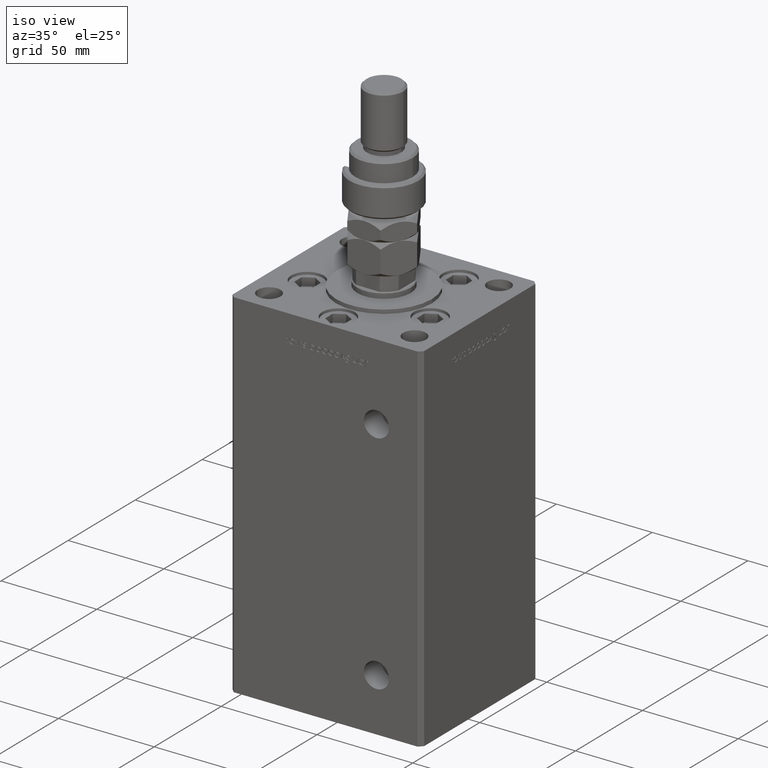
[diagram: clean part render]
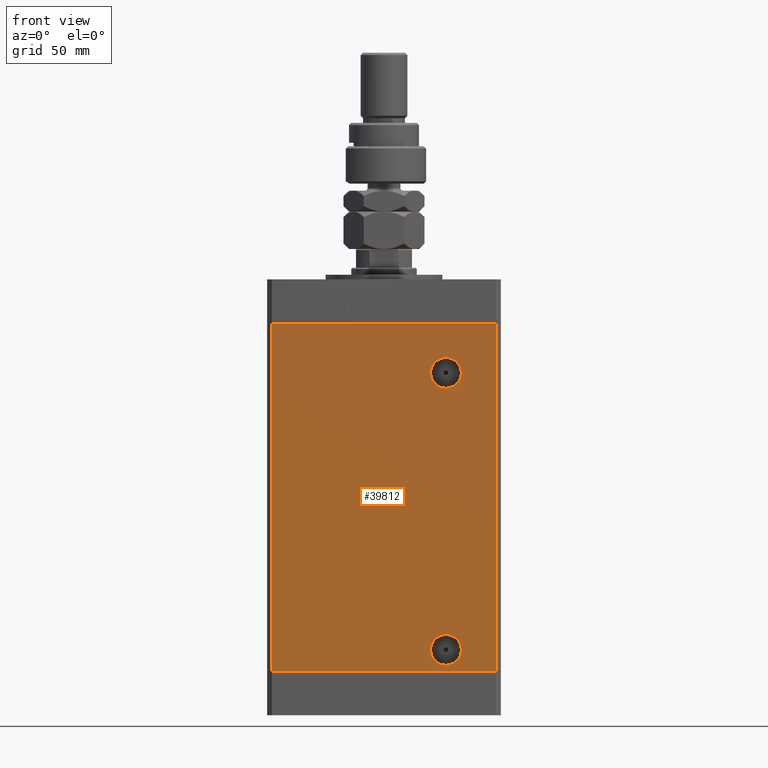
[diagram: tour spotlight — one face highlighted and labeled with its STEP entity id]
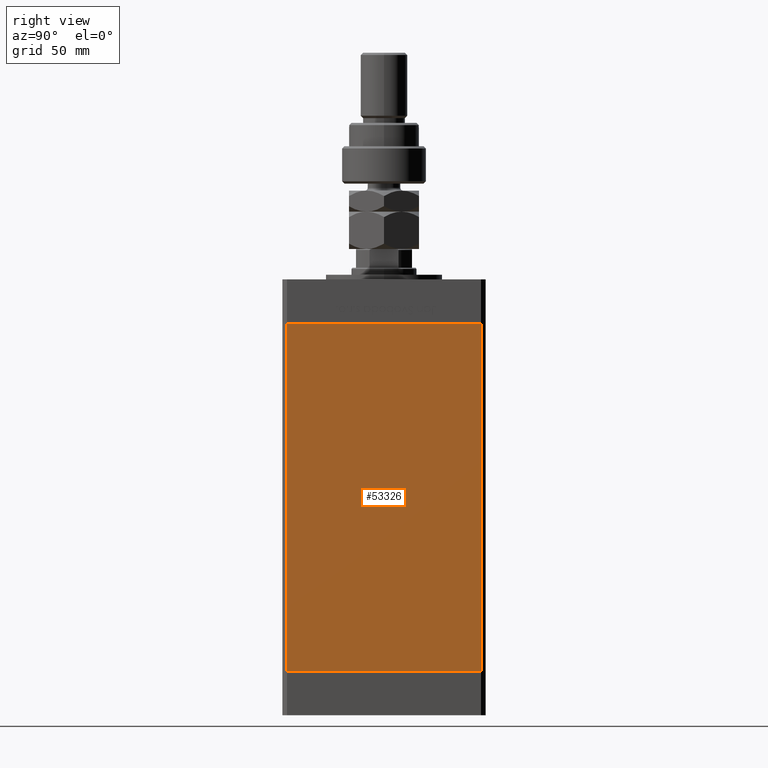
[diagram: tour spotlight — one face highlighted and labeled with its STEP entity id]
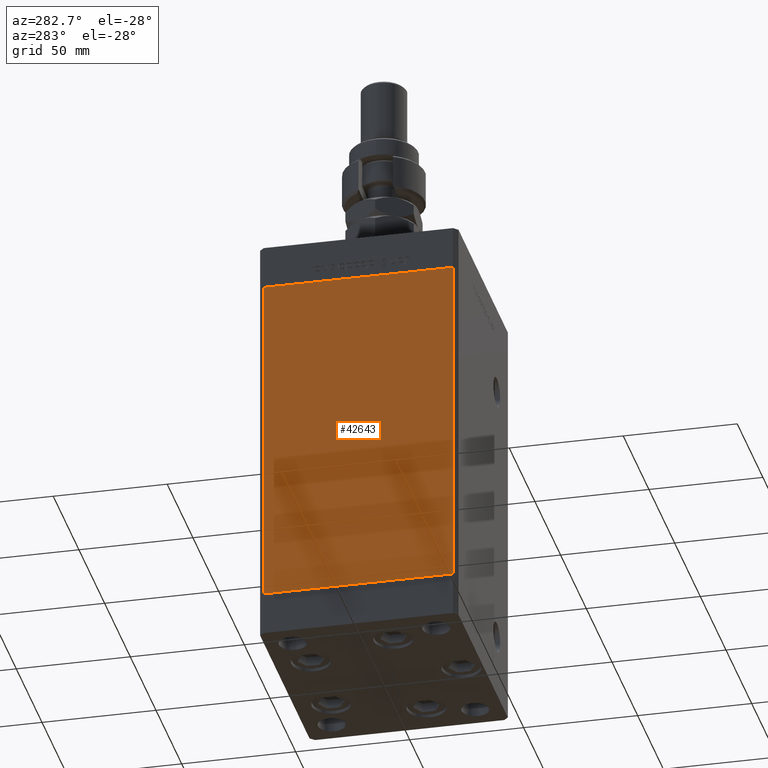
[diagram: tour spotlight — one face highlighted and labeled with its STEP entity id]
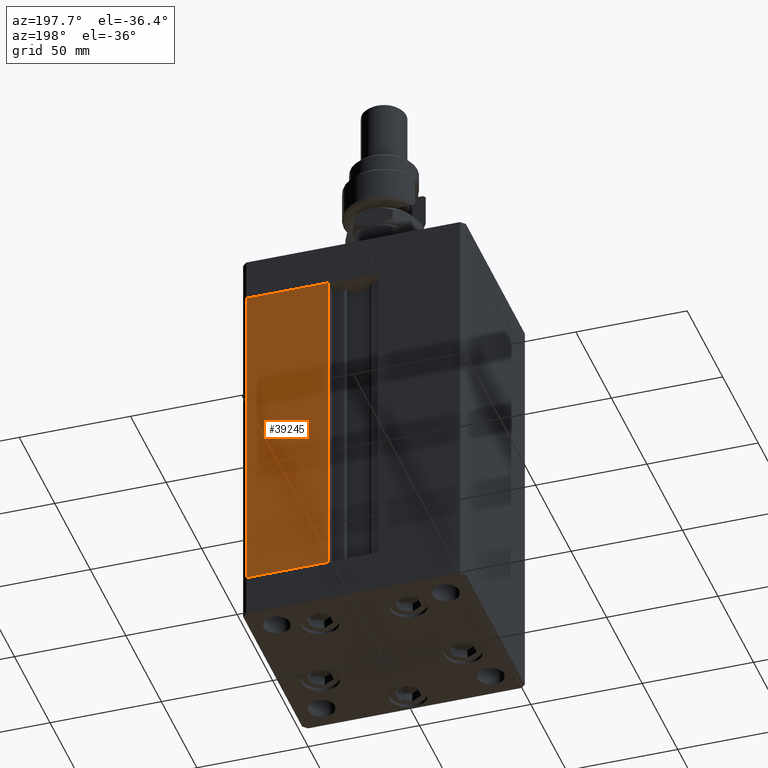
[diagram: tour spotlight — one face highlighted and labeled with its STEP entity id]
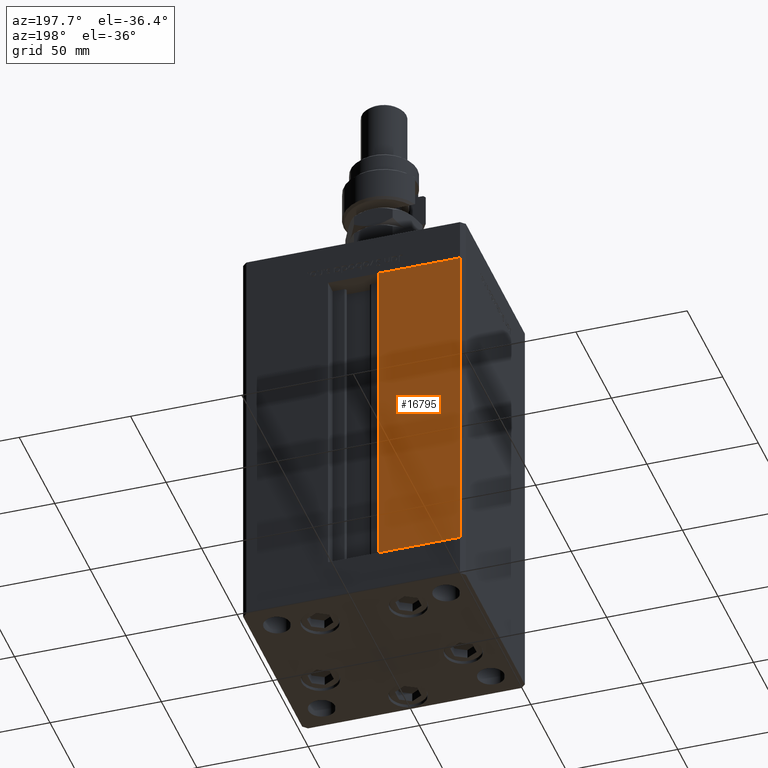
[diagram: tour spotlight — one face highlighted and labeled with its STEP entity id]
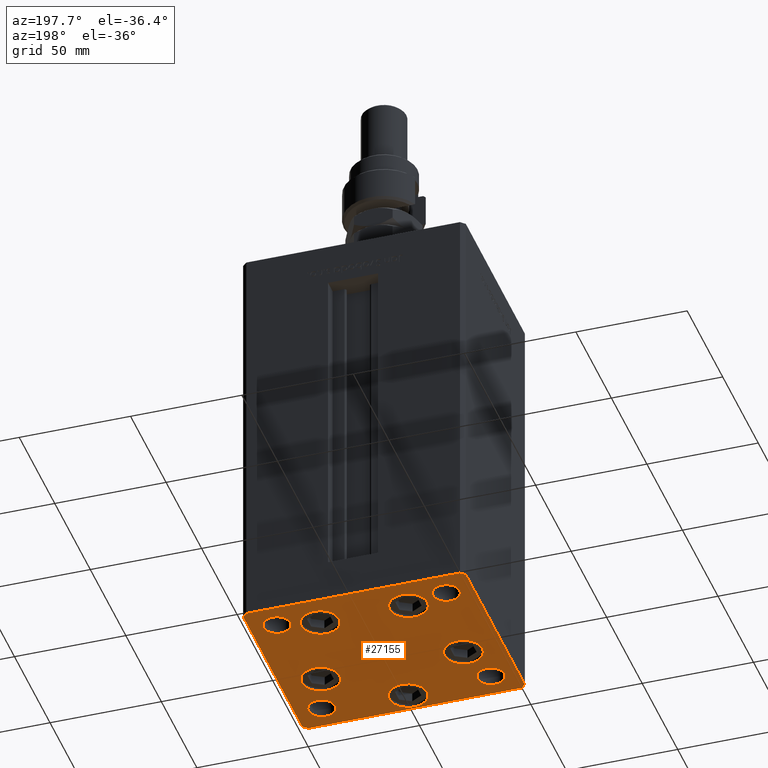
[diagram: tour spotlight — one face highlighted and labeled with its STEP entity id]
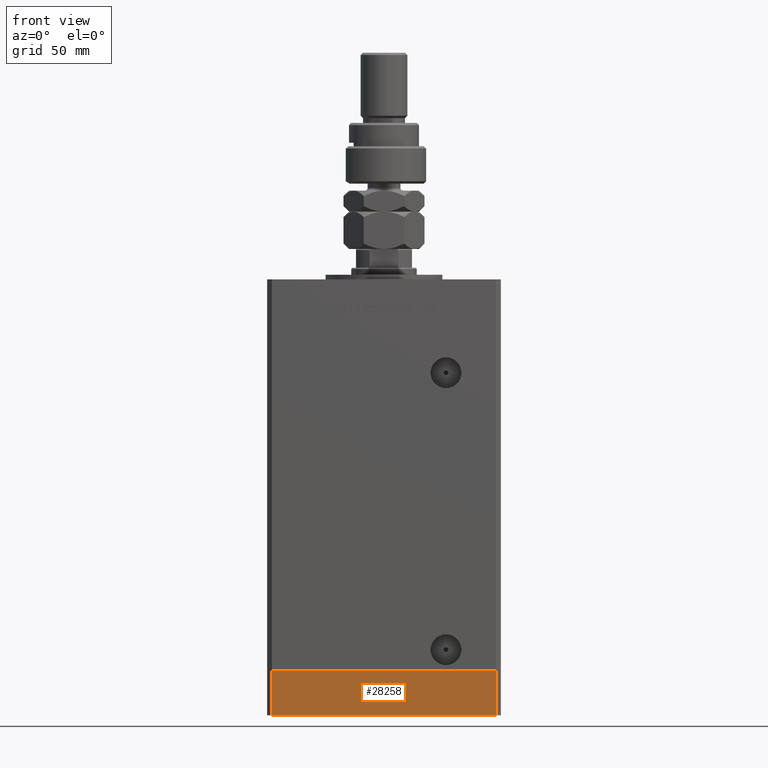
[diagram: tour spotlight — one face highlighted and labeled with its STEP entity id]
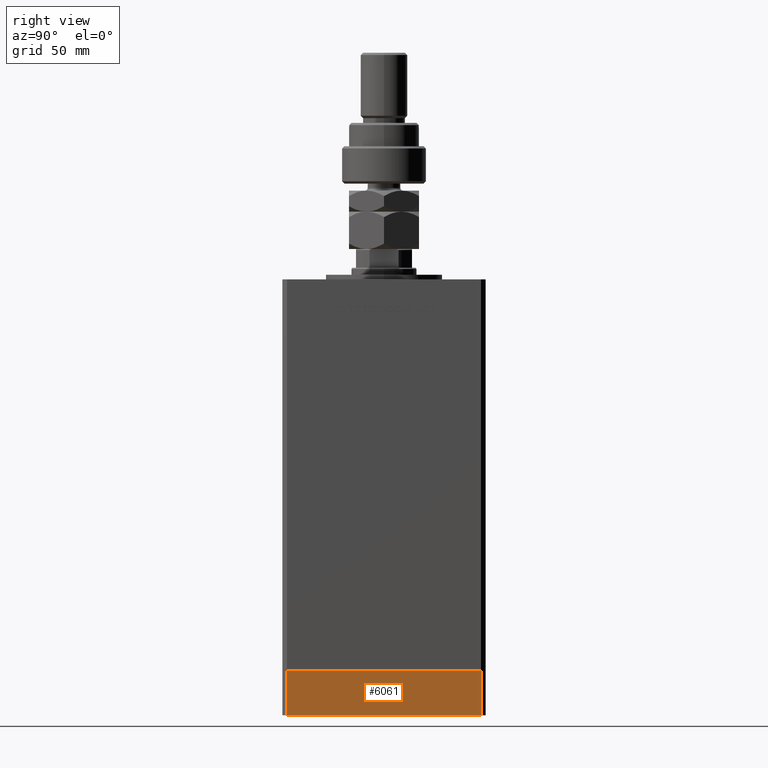
[diagram: tour spotlight — one face highlighted and labeled with its STEP entity id]
A machine part: a face-by-face anatomy tour. The part has 1270 B-rep faces; the first image is the clean iso view, then the 8 largest visible faces are spotlighted one at a time (largest first), each with its STEP entity span.

Face 1 — front view, entity #39812. In plain terms, the highlighted planar face has unit normal (0, 1, 0).
Definition (entity closure, byte-faithful):
#732 = CIRCLE ( 'NONE', #26509, 6.579999999999994742 ) ;
#2773 = CARTESIAN_POINT ( 'NONE',  ( -47.99999999999998579, -43.50000000000000000, 0.000000000000000000 ) ) ;
#2948 = DIRECTION ( 'NONE',  ( 0.000000000000000000, -1.000000000000000000, 0.000000000000000000 ) ) ;
#3238 = LINE ( 'NONE', #19109, #3497 ) ;
#3280 = CARTESIAN_POINT ( 'NONE',  ( -47.99999999999998579, -43.50000000000000000, 148.5000000000000000 ) ) ;
#3497 = VECTOR ( 'NONE', #27424, 1000.000000000000000 ) ;
#3623 = DIRECTION ( 'NONE',  ( 0.000000000000000000, -1.000000000000000000, 0.000000000000000000 ) ) ;
#4094 = DIRECTION ( 'NONE',  ( -0.000000000000000000, 1.000000000000000000, -0.000000000000000000 ) ) ;
#4570 = CIRCLE ( 'NONE', #11656, 6.579999999999988525 ) ;
#6698 = CIRCLE ( 'NONE', #33313, 6.579999999999994742 ) ;
#7164 = FACE_BOUND ( 'NONE', #11383, .T. ) ;
#8353 = CARTESIAN_POINT ( 'NONE',  ( 26.49999999999998934, -43.50000000000000000, 15.58000000000000362 ) ) ;
#8431 = ORIENTED_EDGE ( 'NONE', *, *, #46330, .T. ) ;
#9621 = DIRECTION ( 'NONE',  ( 1.000000000000000000, 0.000000000000000000, 0.000000000000000000 ) ) ;
#10571 = EDGE_CURVE ( 'NONE', #36132, #29911, #732, .T. ) ;
#11073 = CARTESIAN_POINT ( 'NONE',  ( -47.99999999999998579, -43.50000000000000000, 148.5000000000000000 ) ) ;
#11383 = EDGE_LOOP ( 'NONE', ( #21971, #29730 ) ) ;
#11490 = DIRECTION ( 'NONE',  ( 1.000000000000000000, 0.000000000000000000, 0.000000000000000000 ) ) ;
#11656 = AXIS2_PLACEMENT_3D ( 'NONE', #39619, #44056, #43242 ) ;
#12504 = CARTESIAN_POINT ( 'NONE',  ( 47.99999999999998579, -43.50000000000000000, 148.5000000000000000 ) ) ;
#14311 = AXIS2_PLACEMENT_3D ( 'NONE', #29375, #4094, #29653 ) ;
#14866 = VERTEX_POINT ( 'NONE', #12504 ) ;
#15697 = EDGE_LOOP ( 'NONE', ( #37154, #28094, #28052, #8431 ) ) ;
#16974 = EDGE_CURVE ( 'NONE', #47773, #19851, #4570, .T. ) ;
#17281 = VERTEX_POINT ( 'NONE', #2773 ) ;
#18776 = LINE ( 'NONE', #35736, #40946 ) ;
#18872 = DIRECTION ( 'NONE',  ( 0.000000000000000000, -0.000000000000000000, 1.000000000000000000 ) ) ;
#19109 = CARTESIAN_POINT ( 'NONE',  ( 47.99999999999998579, -43.50000000000000000, 148.5000000000000000 ) ) ;
#19761 = VECTOR ( 'NONE', #20235, 1000.000000000000000 ) ;
#19851 = VERTEX_POINT ( 'NONE', #52595 ) ;
#19959 = FACE_BOUND ( 'NONE', #40221, .T. ) ;
#20235 = DIRECTION ( 'NONE',  ( -0.000000000000000000, -0.000000000000000000, -1.000000000000000000 ) ) ;
#21971 = ORIENTED_EDGE ( 'NONE', *, *, #10571, .F. ) ;
#23135 = VECTOR ( 'NONE', #11490, 1000.000000000000000 ) ;
#23449 = CARTESIAN_POINT ( 'NONE',  ( -47.99999999999998579, -43.50000000000000000, 148.5000000000000000 ) ) ;
#24741 = CARTESIAN_POINT ( 'NONE',  ( 26.49999999999998934, -43.50000000000000000, 9.000000000000007105 ) ) ;
#26509 = AXIS2_PLACEMENT_3D ( 'NONE', #24741, #3623, #32533 ) ;
#27424 = DIRECTION ( 'NONE',  ( -0.000000000000000000, -0.000000000000000000, -1.000000000000000000 ) ) ;
#28052 = ORIENTED_EDGE ( 'NONE', *, *, #42053, .F. ) ;
#28094 = ORIENTED_EDGE ( 'NONE', *, *, #33848, .F. ) ;
#28288 = LINE ( 'NONE', #3280, #19761 ) ;
#29375 = CARTESIAN_POINT ( 'NONE',  ( 26.49999999999997513, -43.50000000000000000, 127.5000000000000000 ) ) ;
#29481 = VERTEX_POINT ( 'NONE', #23449 ) ;
#29653 = DIRECTION ( 'NONE',  ( 0.000000000000000000, 0.000000000000000000, -1.000000000000000000 ) ) ;
#29730 = ORIENTED_EDGE ( 'NONE', *, *, #32044, .F. ) ;
#29911 = VERTEX_POINT ( 'NONE', #8353 ) ;
#31893 = CARTESIAN_POINT ( 'NONE',  ( 26.49999999999998934, -43.50000000000000000, 2.420000000000013252 ) ) ;
#32044 = EDGE_CURVE ( 'NONE', #29911, #36132, #6698, .T. ) ;
#32533 = DIRECTION ( 'NONE',  ( 0.000000000000000000, 0.000000000000000000, -1.000000000000000000 ) ) ;
#32614 = LINE ( 'NONE', #50138, #23135 ) ;
#33313 = AXIS2_PLACEMENT_3D ( 'NONE', #51229, #2948, #36862 ) ;
#33848 = EDGE_CURVE ( 'NONE', #14866, #53397, #3238, .T. ) ;
#34787 = ORIENTED_EDGE ( 'NONE', *, *, #16974, .T. ) ;
#35736 = CARTESIAN_POINT ( 'NONE',  ( -47.99999999999998579, -43.50000000000000000, 148.5000000000000000 ) ) ;
#36132 = VERTEX_POINT ( 'NONE', #31893 ) ;
#36862 = DIRECTION ( 'NONE',  ( 0.000000000000000000, 0.000000000000000000, -1.000000000000000000 ) ) ;
#37118 = EDGE_CURVE ( 'NONE', #19851, #47773, #38262, .T. ) ;
#37154 = ORIENTED_EDGE ( 'NONE', *, *, #40550, .T. ) ;
#38262 = CIRCLE ( 'NONE', #14311, 6.579999999999988525 ) ;
#39619 = CARTESIAN_POINT ( 'NONE',  ( 26.49999999999997513, -43.50000000000000000, 127.5000000000000000 ) ) ;
#39812 = ADVANCED_FACE ( 'NONE', ( #7164, #40533, #19959 ), #44148, .F. ) ;
#40221 = EDGE_LOOP ( 'NONE', ( #34787, #54054 ) ) ;
#40533 = FACE_OUTER_BOUND ( 'NONE', #15697, .T. ) ;
#40550 = EDGE_CURVE ( 'NONE', #17281, #53397, #32614, .T. ) ;
#40946 = VECTOR ( 'NONE', #9621, 1000.000000000000000 ) ;
#42053 = EDGE_CURVE ( 'NONE', #29481, #14866, #18776, .T. ) ;
#43242 = DIRECTION ( 'NONE',  ( 0.000000000000000000, 0.000000000000000000, -1.000000000000000000 ) ) ;
#44056 = DIRECTION ( 'NONE',  ( -0.000000000000000000, 1.000000000000000000, -0.000000000000000000 ) ) ;
#44148 = PLANE ( 'NONE',  #49724 ) ;
#46330 = EDGE_CURVE ( 'NONE', #29481, #17281, #28288, .T. ) ;
#47773 = VERTEX_POINT ( 'NONE', #53494 ) ;
#49724 = AXIS2_PLACEMENT_3D ( 'NONE', #11073, #53065, #18872 ) ;
#50138 = CARTESIAN_POINT ( 'NONE',  ( -47.99999999999998579, -43.50000000000000000, 0.000000000000000000 ) ) ;
#51229 = CARTESIAN_POINT ( 'NONE',  ( 26.49999999999998934, -43.50000000000000000, 9.000000000000007105 ) ) ;
#52595 = CARTESIAN_POINT ( 'NONE',  ( 26.49999999999997513, -43.50000000000000000, 134.0800000000000125 ) ) ;
#52843 = CARTESIAN_POINT ( 'NONE',  ( 47.99999999999998579, -43.50000000000000000, 0.000000000000000000 ) ) ;
#53065 = DIRECTION ( 'NONE',  ( 0.000000000000000000, 1.000000000000000000, 0.000000000000000000 ) ) ;
#53397 = VERTEX_POINT ( 'NONE', #52843 ) ;
#53494 = CARTESIAN_POINT ( 'NONE',  ( 26.49999999999997513, -43.50000000000000000, 120.9200000000000159 ) ) ;
#54054 = ORIENTED_EDGE ( 'NONE', *, *, #37118, .T. ) ;

Face 2 — right view, entity #53326. In plain terms, the highlighted planar face has unit normal (1, -0, 0).
Definition (entity closure, byte-faithful):
#2877 = LINE ( 'NONE', #15665, #18039 ) ;
#3942 = CARTESIAN_POINT ( 'NONE',  ( 50.00000000000001421, 41.49999999999999289, 148.5000000000000000 ) ) ;
#4253 = CARTESIAN_POINT ( 'NONE',  ( 50.00000000000001421, 41.49999999999999289, 148.5000000000000000 ) ) ;
#5787 = VERTEX_POINT ( 'NONE', #33679 ) ;
#7804 = VECTOR ( 'NONE', #42042, 1000.000000000000000 ) ;
#8389 = DIRECTION ( 'NONE',  ( 1.000000000000000000, -3.344045254895050480E-16, 0.000000000000000000 ) ) ;
#8959 = CARTESIAN_POINT ( 'NONE',  ( 50.00000000000001421, 41.49999999999999289, 0.000000000000000000 ) ) ;
#9055 = VECTOR ( 'NONE', #48394, 1000.000000000000000 ) ;
#9381 = EDGE_CURVE ( 'NONE', #50284, #29689, #54310, .T. ) ;
#9485 = FACE_OUTER_BOUND ( 'NONE', #43022, .T. ) ;
#10032 = CARTESIAN_POINT ( 'NONE',  ( 50.00000000000001421, 41.49999999999999289, 0.000000000000000000 ) ) ;
#12087 = ORIENTED_EDGE ( 'NONE', *, *, #23124, .T. ) ;
#15665 = CARTESIAN_POINT ( 'NONE',  ( 50.00000000000001421, 41.49999999999999289, 148.5000000000000000 ) ) ;
#18039 = VECTOR ( 'NONE', #40675, 1000.000000000000000 ) ;
#18274 = AXIS2_PLACEMENT_3D ( 'NONE', #3942, #8389, #42282 ) ;
#23124 = EDGE_CURVE ( 'NONE', #5787, #53239, #25485, .T. ) ;
#25485 = LINE ( 'NONE', #49963, #43686 ) ;
#25878 = CARTESIAN_POINT ( 'NONE',  ( 49.99999999999998579, -41.49999999999999289, 0.000000000000000000 ) ) ;
#29689 = VERTEX_POINT ( 'NONE', #8959 ) ;
#33679 = CARTESIAN_POINT ( 'NONE',  ( 49.99999999999998579, -41.49999999999999289, 148.5000000000000000 ) ) ;
#33846 = ORIENTED_EDGE ( 'NONE', *, *, #9381, .F. ) ;
#34102 = DIRECTION ( 'NONE',  ( -0.000000000000000000, -0.000000000000000000, -1.000000000000000000 ) ) ;
#37673 = ORIENTED_EDGE ( 'NONE', *, *, #43706, .F. ) ;
#40675 = DIRECTION ( 'NONE',  ( -3.344045254895050973E-16, -1.000000000000000000, 0.000000000000000000 ) ) ;
#41763 = ORIENTED_EDGE ( 'NONE', *, *, #46917, .T. ) ;
#42001 = PLANE ( 'NONE',  #18274 ) ;
#42042 = DIRECTION ( 'NONE',  ( -0.000000000000000000, -0.000000000000000000, -1.000000000000000000 ) ) ;
#42282 = DIRECTION ( 'NONE',  ( 3.344045254895050480E-16, 1.000000000000000000, 0.000000000000000000 ) ) ;
#43022 = EDGE_LOOP ( 'NONE', ( #37673, #33846, #41763, #12087 ) ) ;
#43188 = CARTESIAN_POINT ( 'NONE',  ( 50.00000000000001421, 41.49999999999999289, 148.5000000000000000 ) ) ;
#43686 = VECTOR ( 'NONE', #34102, 1000.000000000000000 ) ;
#43706 = EDGE_CURVE ( 'NONE', #29689, #53239, #48111, .T. ) ;
#46917 = EDGE_CURVE ( 'NONE', #50284, #5787, #2877, .T. ) ;
#48111 = LINE ( 'NONE', #10032, #9055 ) ;
#48394 = DIRECTION ( 'NONE',  ( -3.344045254895050973E-16, -1.000000000000000000, 0.000000000000000000 ) ) ;
#49963 = CARTESIAN_POINT ( 'NONE',  ( 49.99999999999998579, -41.49999999999999289, 148.5000000000000000 ) ) ;
#50284 = VERTEX_POINT ( 'NONE', #43188 ) ;
#53239 = VERTEX_POINT ( 'NONE', #25878 ) ;
#53326 = ADVANCED_FACE ( 'NONE', ( #9485 ), #42001, .T. ) ;
#54310 = LINE ( 'NONE', #4253, #7804 ) ;

Face 3 — auxiliary view, entity #42643. In plain terms, the highlighted planar face has unit normal (1, 0, 0).
Definition (entity closure, byte-faithful):
#1190 = DIRECTION ( 'NONE',  ( -0.000000000000000000, -0.000000000000000000, -1.000000000000000000 ) ) ;
#3363 = EDGE_LOOP ( 'NONE', ( #33184, #25819, #48231, #43860 ) ) ;
#3993 = CARTESIAN_POINT ( 'NONE',  ( -50.00000000000001421, 41.49999999999999289, 0.000000000000000000 ) ) ;
#4771 = DIRECTION ( 'NONE',  ( 1.000000000000000000, 3.344045254895050480E-16, -0.000000000000000000 ) ) ;
#6259 = CARTESIAN_POINT ( 'NONE',  ( -50.00000000000001421, 41.49999999999999289, 148.5000000000000000 ) ) ;
#8662 = PLANE ( 'NONE',  #11701 ) ;
#10574 = CARTESIAN_POINT ( 'NONE',  ( -49.99999999999998579, -41.49999999999999289, 148.5000000000000000 ) ) ;
#11701 = AXIS2_PLACEMENT_3D ( 'NONE', #25884, #4771, #25607 ) ;
#13946 = VERTEX_POINT ( 'NONE', #10574 ) ;
#15028 = DIRECTION ( 'NONE',  ( 3.344045254895050973E-16, -1.000000000000000000, 0.000000000000000000 ) ) ;
#17386 = VECTOR ( 'NONE', #1190, 1000.000000000000000 ) ;
#18226 = VECTOR ( 'NONE', #38330, 1000.000000000000000 ) ;
#18444 = CARTESIAN_POINT ( 'NONE',  ( -50.00000000000001421, 41.49999999999999289, 148.5000000000000000 ) ) ;
#19325 = DIRECTION ( 'NONE',  ( 3.344045254895050973E-16, -1.000000000000000000, 0.000000000000000000 ) ) ;
#25607 = DIRECTION ( 'NONE',  ( -3.344045254895050480E-16, 1.000000000000000000, 0.000000000000000000 ) ) ;
#25819 = ORIENTED_EDGE ( 'NONE', *, *, #53531, .F. ) ;
#25884 = CARTESIAN_POINT ( 'NONE',  ( -50.00000000000001421, 41.49999999999999289, 148.5000000000000000 ) ) ;
#28190 = LINE ( 'NONE', #6259, #48069 ) ;
#29160 = LINE ( 'NONE', #38050, #18226 ) ;
#33184 = ORIENTED_EDGE ( 'NONE', *, *, #38573, .T. ) ;
#34789 = FACE_OUTER_BOUND ( 'NONE', #3363, .T. ) ;
#38050 = CARTESIAN_POINT ( 'NONE',  ( -49.99999999999998579, -41.49999999999999289, 148.5000000000000000 ) ) ;
#38320 = VERTEX_POINT ( 'NONE', #48183 ) ;
#38330 = DIRECTION ( 'NONE',  ( -0.000000000000000000, -0.000000000000000000, -1.000000000000000000 ) ) ;
#38573 = EDGE_CURVE ( 'NONE', #50854, #38320, #40035, .T. ) ;
#40035 = LINE ( 'NONE', #48401, #51653 ) ;
#42177 = EDGE_CURVE ( 'NONE', #54899, #13946, #28190, .T. ) ;
#42643 = ADVANCED_FACE ( 'NONE', ( #34789 ), #8662, .F. ) ;
#43860 = ORIENTED_EDGE ( 'NONE', *, *, #54902, .T. ) ;
#44262 = LINE ( 'NONE', #18444, #17386 ) ;
#48069 = VECTOR ( 'NONE', #19325, 1000.000000000000000 ) ;
#48183 = CARTESIAN_POINT ( 'NONE',  ( -49.99999999999998579, -41.49999999999999289, 0.000000000000000000 ) ) ;
#48231 = ORIENTED_EDGE ( 'NONE', *, *, #42177, .F. ) ;
#48401 = CARTESIAN_POINT ( 'NONE',  ( -50.00000000000001421, 41.49999999999999289, 0.000000000000000000 ) ) ;
#50854 = VERTEX_POINT ( 'NONE', #3993 ) ;
#51653 = VECTOR ( 'NONE', #15028, 1000.000000000000000 ) ;
#52093 = CARTESIAN_POINT ( 'NONE',  ( -50.00000000000001421, 41.49999999999999289, 148.5000000000000000 ) ) ;
#53531 = EDGE_CURVE ( 'NONE', #13946, #38320, #29160, .T. ) ;
#54899 = VERTEX_POINT ( 'NONE', #52093 ) ;
#54902 = EDGE_CURVE ( 'NONE', #54899, #50854, #44262, .T. ) ;

Face 4 — auxiliary view, entity #39245. In plain terms, the highlighted planar face has unit normal (0, -1, 0).
Definition (entity closure, byte-faithful):
#2243 = VERTEX_POINT ( 'NONE', #24778 ) ;
#2859 = DIRECTION ( 'NONE',  ( 0.000000000000000000, -1.000000000000000000, 0.000000000000000000 ) ) ;
#3165 = CARTESIAN_POINT ( 'NONE',  ( -11.24999999999999822, 43.50000000000000000, 148.5000000000000000 ) ) ;
#3398 = DIRECTION ( 'NONE',  ( 0.000000000000000000, -0.000000000000000000, -1.000000000000000000 ) ) ;
#4127 = EDGE_CURVE ( 'NONE', #43163, #7754, #34457, .T. ) ;
#4443 = CARTESIAN_POINT ( 'NONE',  ( -11.24999999999999822, 43.50000000000000000, 0.000000000000000000 ) ) ;
#4540 = CARTESIAN_POINT ( 'NONE',  ( 48.00000000000000711, 43.50000000000000000, 148.5000000000000000 ) ) ;
#6636 = VECTOR ( 'NONE', #50684, 1000.000000000000000 ) ;
#7754 = VERTEX_POINT ( 'NONE', #26389 ) ;
#12611 = LINE ( 'NONE', #4540, #6636 ) ;
#13604 = CARTESIAN_POINT ( 'NONE',  ( 48.00000000000000711, 43.50000000000000000, 0.000000000000000000 ) ) ;
#18470 = VECTOR ( 'NONE', #38068, 1000.000000000000000 ) ;
#22376 = VECTOR ( 'NONE', #30968, 1000.000000000000000 ) ;
#23323 = EDGE_CURVE ( 'NONE', #7754, #30732, #39300, .T. ) ;
#24778 = CARTESIAN_POINT ( 'NONE',  ( 48.00000000000000711, 43.50000000000000000, 148.5000000000000000 ) ) ;
#26245 = PLANE ( 'NONE',  #32847 ) ;
#26389 = CARTESIAN_POINT ( 'NONE',  ( 11.24999999999999822, 43.50000000000000000, 0.000000000000000000 ) ) ;
#29444 = ORIENTED_EDGE ( 'NONE', *, *, #50806, .T. ) ;
#30639 = VECTOR ( 'NONE', #53778, 1000.000000000000000 ) ;
#30732 = VERTEX_POINT ( 'NONE', #52001 ) ;
#30968 = DIRECTION ( 'NONE',  ( -0.000000000000000000, -0.000000000000000000, 1.000000000000000000 ) ) ;
#31423 = EDGE_CURVE ( 'NONE', #30732, #2243, #41232, .T. ) ;
#32847 = AXIS2_PLACEMENT_3D ( 'NONE', #37034, #2859, #3398 ) ;
#32900 = ORIENTED_EDGE ( 'NONE', *, *, #23323, .T. ) ;
#34457 = LINE ( 'NONE', #4443, #18470 ) ;
#37034 = CARTESIAN_POINT ( 'NONE',  ( -11.24999999999999822, 43.50000000000000000, 148.5000000000000000 ) ) ;
#38068 = DIRECTION ( 'NONE',  ( -1.000000000000000000, 0.000000000000000000, 0.000000000000000000 ) ) ;
#39245 = ADVANCED_FACE ( 'NONE', ( #47376 ), #26245, .F. ) ;
#39300 = LINE ( 'NONE', #47101, #22376 ) ;
#41232 = LINE ( 'NONE', #3165, #30639 ) ;
#43163 = VERTEX_POINT ( 'NONE', #13604 ) ;
#44899 = ORIENTED_EDGE ( 'NONE', *, *, #4127, .T. ) ;
#47101 = CARTESIAN_POINT ( 'NONE',  ( 11.24999999999999822, 43.50000000000000000, 0.000000000000000000 ) ) ;
#47376 = FACE_OUTER_BOUND ( 'NONE', #52165, .T. ) ;
#49397 = ORIENTED_EDGE ( 'NONE', *, *, #31423, .T. ) ;
#50684 = DIRECTION ( 'NONE',  ( -0.000000000000000000, -0.000000000000000000, -1.000000000000000000 ) ) ;
#50806 = EDGE_CURVE ( 'NONE', #2243, #43163, #12611, .T. ) ;
#52001 = CARTESIAN_POINT ( 'NONE',  ( 11.24999999999999112, 43.50000000000000000, 148.5000000000000000 ) ) ;
#52165 = EDGE_LOOP ( 'NONE', ( #44899, #32900, #49397, #29444 ) ) ;
#53778 = DIRECTION ( 'NONE',  ( 1.000000000000000000, 0.000000000000000000, 0.000000000000000000 ) ) ;

Face 5 — auxiliary view, entity #16795. In plain terms, the highlighted planar face has unit normal (0, -1, 0).
Definition (entity closure, byte-faithful):
#2010 = VECTOR ( 'NONE', #53484, 1000.000000000000000 ) ;
#3297 = LINE ( 'NONE', #50543, #21355 ) ;
#7447 = VECTOR ( 'NONE', #25710, 1000.000000000000000 ) ;
#12410 = CARTESIAN_POINT ( 'NONE',  ( -11.24999999999999822, 43.50000000000000000, 148.5000000000000000 ) ) ;
#14618 = ORIENTED_EDGE ( 'NONE', *, *, #24921, .F. ) ;
#15061 = EDGE_LOOP ( 'NONE', ( #21567, #14618, #19261, #43980 ) ) ;
#16795 = ADVANCED_FACE ( 'NONE', ( #51049 ), #42410, .F. ) ;
#19261 = ORIENTED_EDGE ( 'NONE', *, *, #40074, .T. ) ;
#21355 = VECTOR ( 'NONE', #41362, 1000.000000000000000 ) ;
#21567 = ORIENTED_EDGE ( 'NONE', *, *, #28084, .T. ) ;
#21840 = DIRECTION ( 'NONE',  ( 0.000000000000000000, -1.000000000000000000, 0.000000000000000000 ) ) ;
#24362 = DIRECTION ( 'NONE',  ( -0.000000000000000000, -0.000000000000000000, -1.000000000000000000 ) ) ;
#24765 = VERTEX_POINT ( 'NONE', #34884 ) ;
#24921 = EDGE_CURVE ( 'NONE', #31061, #27046, #36786, .T. ) ;
#25710 = DIRECTION ( 'NONE',  ( 1.000000000000000000, 0.000000000000000000, 0.000000000000000000 ) ) ;
#26268 = CARTESIAN_POINT ( 'NONE',  ( -11.24999999999999822, 43.50000000000000000, 148.5000000000000000 ) ) ;
#27046 = VERTEX_POINT ( 'NONE', #34392 ) ;
#28084 = EDGE_CURVE ( 'NONE', #41898, #27046, #29885, .T. ) ;
#29885 = LINE ( 'NONE', #26268, #7447 ) ;
#31061 = VERTEX_POINT ( 'NONE', #46922 ) ;
#32693 = LINE ( 'NONE', #49938, #52450 ) ;
#34392 = CARTESIAN_POINT ( 'NONE',  ( -11.24999999999999822, 43.50000000000000000, 148.5000000000000000 ) ) ;
#34884 = CARTESIAN_POINT ( 'NONE',  ( -48.00000000000000711, 43.50000000000000000, 0.000000000000000000 ) ) ;
#35378 = EDGE_CURVE ( 'NONE', #41898, #24765, #32693, .T. ) ;
#36513 = AXIS2_PLACEMENT_3D ( 'NONE', #12410, #21840, #37696 ) ;
#36786 = LINE ( 'NONE', #40404, #2010 ) ;
#37696 = DIRECTION ( 'NONE',  ( 0.000000000000000000, -0.000000000000000000, -1.000000000000000000 ) ) ;
#38525 = CARTESIAN_POINT ( 'NONE',  ( -48.00000000000000711, 43.50000000000000000, 148.5000000000000000 ) ) ;
#40074 = EDGE_CURVE ( 'NONE', #31061, #24765, #3297, .T. ) ;
#40404 = CARTESIAN_POINT ( 'NONE',  ( -11.24999999999999822, 43.50000000000000000, 0.000000000000000000 ) ) ;
#41362 = DIRECTION ( 'NONE',  ( -1.000000000000000000, 0.000000000000000000, 0.000000000000000000 ) ) ;
#41898 = VERTEX_POINT ( 'NONE', #38525 ) ;
#42410 = PLANE ( 'NONE',  #36513 ) ;
#43980 = ORIENTED_EDGE ( 'NONE', *, *, #35378, .F. ) ;
#46922 = CARTESIAN_POINT ( 'NONE',  ( -11.24999999999999822, 43.50000000000000000, 0.000000000000000000 ) ) ;
#49938 = CARTESIAN_POINT ( 'NONE',  ( -48.00000000000000711, 43.50000000000000000, 148.5000000000000000 ) ) ;
#50543 = CARTESIAN_POINT ( 'NONE',  ( -11.24999999999999822, 43.50000000000000000, 0.000000000000000000 ) ) ;
#51049 = FACE_OUTER_BOUND ( 'NONE', #15061, .T. ) ;
#52450 = VECTOR ( 'NONE', #24362, 1000.000000000000000 ) ;
#53484 = DIRECTION ( 'NONE',  ( -0.000000000000000000, -0.000000000000000000, 1.000000000000000000 ) ) ;

Face 6 — auxiliary view, entity #27155. In plain terms, the highlighted planar face has unit normal (0, 0, -1).
Definition (entity closure, byte-faithful):
#23 = AXIS2_PLACEMENT_3D ( 'NONE', #31083, #8593, #38324 ) ;
#400 = AXIS2_PLACEMENT_3D ( 'NONE', #38989, #22855, #5096 ) ;
#657 = VECTOR ( 'NONE', #46428, 1000.000000000000000 ) ;
#665 = CARTESIAN_POINT ( 'NONE',  ( -19.82068048781373903, 27.62499999999999645, 0.000000000000000000 ) ) ;
#760 = EDGE_CURVE ( 'NONE', #41575, #45090, #12855, .T. ) ;
#944 = DIRECTION ( 'NONE',  ( 1.000000000000000000, 0.000000000000000000, 0.000000000000000000 ) ) ;
#977 = ORIENTED_EDGE ( 'NONE', *, *, #29830, .T. ) ;
#1915 = DIRECTION ( 'NONE',  ( -0.000000000000000000, 0.000000000000000000, 1.000000000000000000 ) ) ;
#2209 = EDGE_LOOP ( 'NONE', ( #53015, #45841 ) ) ;
#2396 = DIRECTION ( 'NONE',  ( 1.000000000000000000, 0.000000000000000000, 0.000000000000000000 ) ) ;
#2458 = DIRECTION ( 'NONE',  ( 8.360113137237628665E-17, -1.000000000000000000, 0.000000000000000000 ) ) ;
#2467 = CIRCLE ( 'NONE', #40622, 8.499999999999992895 ) ;
#3013 = VERTEX_POINT ( 'NONE', #19266 ) ;
#3299 = VECTOR ( 'NONE', #47308, 1000.000000000000114 ) ;
#3809 = DIRECTION ( 'NONE',  ( -0.000000000000000000, 0.000000000000000000, 1.000000000000000000 ) ) ;
#3810 = CIRCLE ( 'NONE', #41054, 8.500000000000000000 ) ;
#3998 = CIRCLE ( 'NONE', #400, 5.999999999999998224 ) ;
#4212 = CARTESIAN_POINT ( 'NONE',  ( 32.05550741379015278, -11.33333333333333037, 0.000000000000000000 ) ) ;
#4634 = CARTESIAN_POINT ( 'NONE',  ( 50.00000000000000000, -41.49999999999999289, 0.000000000000000000 ) ) ;
#4901 = DIRECTION ( 'NONE',  ( 0.000000000000000000, -0.000000000000000000, -1.000000000000000000 ) ) ;
#4974 = ORIENTED_EDGE ( 'NONE', *, *, #26685, .T. ) ;
#5034 = CARTESIAN_POINT ( 'NONE',  ( -37.99999999999999289, -31.50000000000000000, 0.000000000000000000 ) ) ;
#5096 = DIRECTION ( 'NONE',  ( 1.000000000000000000, 0.000000000000000000, 0.000000000000000000 ) ) ;
#5228 = CARTESIAN_POINT ( 'NONE',  ( -48.00000000000000711, 43.49999999999996447, 0.000000000000000000 ) ) ;
#5318 = DIRECTION ( 'NONE',  ( 1.000000000000000000, 0.000000000000000000, 0.000000000000000000 ) ) ;
#6310 = EDGE_CURVE ( 'NONE', #53262, #44506, #34534, .T. ) ;
#6445 = EDGE_CURVE ( 'NONE', #9610, #26554, #34382, .T. ) ;
#6707 = CIRCLE ( 'NONE', #8460, 6.000000000000005329 ) ;
#6860 = ORIENTED_EDGE ( 'NONE', *, *, #36060, .T. ) ;
#7379 = FACE_OUTER_BOUND ( 'NONE', #10810, .T. ) ;
#8144 = EDGE_CURVE ( 'NONE', #18992, #47822, #2467, .T. ) ;
#8244 = CIRCLE ( 'NONE', #49993, 8.500000000000000000 ) ;
#8306 = ORIENTED_EDGE ( 'NONE', *, *, #21195, .T. ) ;
#8328 = ORIENTED_EDGE ( 'NONE', *, *, #53961, .T. ) ;
#8460 = AXIS2_PLACEMENT_3D ( 'NONE', #5034, #21701, #47554 ) ;
#8489 = FACE_BOUND ( 'NONE', #13354, .T. ) ;
#8503 = EDGE_CURVE ( 'NONE', #45090, #23361, #38906, .T. ) ;
#8593 = DIRECTION ( 'NONE',  ( 0.000000000000000000, -0.000000000000000000, -1.000000000000000000 ) ) ;
#8901 = VECTOR ( 'NONE', #53432, 1000.000000000000000 ) ;
#8911 = VERTEX_POINT ( 'NONE', #10203 ) ;
#9078 = DIRECTION ( 'NONE',  ( -1.003213576468515193E-15, 1.000000000000000000, 0.000000000000000000 ) ) ;
#9447 = DIRECTION ( 'NONE',  ( 1.000000000000000000, 0.000000000000000000, 0.000000000000000000 ) ) ;
#9558 = CARTESIAN_POINT ( 'NONE',  ( -32.00000000000000000, 31.50000000000000000, 0.000000000000000000 ) ) ;
#9610 = VERTEX_POINT ( 'NONE', #24205 ) ;
#9724 = DIRECTION ( 'NONE',  ( 0.000000000000000000, -0.000000000000000000, -1.000000000000000000 ) ) ;
#10203 = CARTESIAN_POINT ( 'NONE',  ( -50.00000000000000711, 41.49999999999995026, 0.000000000000000000 ) ) ;
#10683 = CIRCLE ( 'NONE', #23, 8.500000000000000000 ) ;
#10810 = EDGE_LOOP ( 'NONE', ( #34691, #15841, #35453, #51659, #32778, #42830, #26072, #32950 ) ) ;
#10822 = ORIENTED_EDGE ( 'NONE', *, *, #13562, .T. ) ;
#10899 = CARTESIAN_POINT ( 'NONE',  ( 38.00000000000000000, -31.49999999999999289, 0.000000000000000000 ) ) ;
#10913 = DIRECTION ( 'NONE',  ( 0.000000000000000000, -0.000000000000000000, -1.000000000000000000 ) ) ;
#11149 = CARTESIAN_POINT ( 'NONE',  ( -32.05550741379015278, -11.33333333333333925, 0.000000000000000000 ) ) ;
#11267 = DIRECTION ( 'NONE',  ( 0.7071067811865474617, -0.7071067811865474617, 0.000000000000000000 ) ) ;
#11539 = DIRECTION ( 'NONE',  ( 0.000000000000000000, -0.000000000000000000, -1.000000000000000000 ) ) ;
#11717 = VERTEX_POINT ( 'NONE', #24138 ) ;
#11937 = VERTEX_POINT ( 'NONE', #40213 ) ;
#12157 = CARTESIAN_POINT ( 'NONE',  ( -23.55550741379015278, -11.33333333333333748, 0.000000000000000000 ) ) ;
#12591 = CARTESIAN_POINT ( 'NONE',  ( 44.00000000000000000, 31.49999999999999289, 0.000000000000000000 ) ) ;
#12846 = EDGE_CURVE ( 'NONE', #31138, #26488, #47883, .T. ) ;
#12855 = LINE ( 'NONE', #30632, #3299 ) ;
#13149 = CARTESIAN_POINT ( 'NONE',  ( 40.55550741379014568, -11.33333333333332860, 0.000000000000000000 ) ) ;
#13263 = CARTESIAN_POINT ( 'NONE',  ( -50.00000000000000000, -41.50000000000000000, 0.000000000000000000 ) ) ;
#13354 = EDGE_LOOP ( 'NONE', ( #51533, #40498 ) ) ;
#13562 = EDGE_CURVE ( 'NONE', #44506, #53262, #51518, .T. ) ;
#14039 = EDGE_CURVE ( 'NONE', #38292, #11717, #38159, .T. ) ;
#14478 = CARTESIAN_POINT ( 'NONE',  ( -44.00000000000000000, -31.50000000000000000, 0.000000000000000000 ) ) ;
#14602 = AXIS2_PLACEMENT_3D ( 'NONE', #11149, #16138, #24744 ) ;
#15590 = CARTESIAN_POINT ( 'NONE',  ( -28.32068048781373903, 27.62499999999999645, 0.000000000000000000 ) ) ;
#15841 = ORIENTED_EDGE ( 'NONE', *, *, #34798, .T. ) ;
#15943 = VERTEX_POINT ( 'NONE', #15590 ) ;
#16036 = AXIS2_PLACEMENT_3D ( 'NONE', #28657, #16993, #42821 ) ;
#16138 = DIRECTION ( 'NONE',  ( 0.000000000000000000, -0.000000000000000000, -1.000000000000000000 ) ) ;
#16220 = CIRCLE ( 'NONE', #51716, 5.999999999999998224 ) ;
#16555 = FACE_BOUND ( 'NONE', #26949, .T. ) ;
#16732 = EDGE_CURVE ( 'NONE', #52678, #11937, #48938, .T. ) ;
#16826 = VECTOR ( 'NONE', #39800, 1000.000000000000000 ) ;
#16993 = DIRECTION ( 'NONE',  ( 0.000000000000000000, -0.000000000000000000, -1.000000000000000000 ) ) ;
#17101 = VECTOR ( 'NONE', #2458, 1000.000000000000000 ) ;
#17550 = CARTESIAN_POINT ( 'NONE',  ( 28.32068048781373193, 27.62500000000000000, 0.000000000000000000 ) ) ;
#17594 = EDGE_CURVE ( 'NONE', #46783, #29724, #29398, .T. ) ;
#18049 = CARTESIAN_POINT ( 'NONE',  ( -38.00000000000000000, 31.50000000000000000, 0.000000000000000000 ) ) ;
#18474 = CARTESIAN_POINT ( 'NONE',  ( 32.00000000000000000, 31.49999999999999289, 0.000000000000000000 ) ) ;
#18905 = ORIENTED_EDGE ( 'NONE', *, *, #25824, .T. ) ;
#18934 = CARTESIAN_POINT ( 'NONE',  ( 11.32068048781373015, 27.62500000000000000, 0.000000000000000000 ) ) ;
#18992 = VERTEX_POINT ( 'NONE', #53617 ) ;
#19084 = CARTESIAN_POINT ( 'NONE',  ( 32.05550741379015278, -11.33333333333333037, 0.000000000000000000 ) ) ;
#19098 = CIRCLE ( 'NONE', #25281, 5.999999999999998224 ) ;
#19266 = CARTESIAN_POINT ( 'NONE',  ( -11.32068048781373726, 27.62499999999999645, 0.000000000000000000 ) ) ;
#19379 = CARTESIAN_POINT ( 'NONE',  ( -37.99999999999999289, -31.50000000000000000, 0.000000000000000000 ) ) ;
#19426 = EDGE_LOOP ( 'NONE', ( #32208, #31435 ) ) ;
#19506 = LINE ( 'NONE', #36461, #8901 ) ;
#19586 = CARTESIAN_POINT ( 'NONE',  ( 32.00000000000000000, -31.49999999999999289, 0.000000000000000000 ) ) ;
#19686 = CARTESIAN_POINT ( 'NONE',  ( -50.00000000000000711, 41.49999999999995026, 0.000000000000000000 ) ) ;
#19898 = PLANE ( 'NONE',  #26928 ) ;
#20472 = ORIENTED_EDGE ( 'NONE', *, *, #41689, .T. ) ;
#21195 = EDGE_CURVE ( 'NONE', #50031, #26689, #3810, .T. ) ;
#21296 = DIRECTION ( 'NONE',  ( 1.000000000000000000, 0.000000000000000000, 0.000000000000000000 ) ) ;
#21358 = ORIENTED_EDGE ( 'NONE', *, *, #17594, .F. ) ;
#21701 = DIRECTION ( 'NONE',  ( 0.000000000000000000, -0.000000000000000000, -1.000000000000000000 ) ) ;
#21813 = DIRECTION ( 'NONE',  ( 0.000000000000000000, -0.000000000000000000, -1.000000000000000000 ) ) ;
#22171 = CARTESIAN_POINT ( 'NONE',  ( 47.99999999999999289, -43.50000000000001421, 0.000000000000000000 ) ) ;
#22205 = DIRECTION ( 'NONE',  ( 1.000000000000000000, 0.000000000000000000, 0.000000000000000000 ) ) ;
#22373 = CARTESIAN_POINT ( 'NONE',  ( 50.00000000000000000, -41.49999999999999289, 0.000000000000000000 ) ) ;
#22855 = DIRECTION ( 'NONE',  ( -0.000000000000000000, 0.000000000000000000, 1.000000000000000000 ) ) ;
#23041 = CARTESIAN_POINT ( 'NONE',  ( 38.00000000000000000, 31.49999999999999289, 0.000000000000000000 ) ) ;
#23043 = VERTEX_POINT ( 'NONE', #12157 ) ;
#23256 = EDGE_LOOP ( 'NONE', ( #10822, #38666 ) ) ;
#23361 = VERTEX_POINT ( 'NONE', #47922 ) ;
#23409 = CARTESIAN_POINT ( 'NONE',  ( 49.99999999999992184, 41.49999999999998579, 0.000000000000000000 ) ) ;
#23576 = CIRCLE ( 'NONE', #41291, 8.499999999999992895 ) ;
#24138 = CARTESIAN_POINT ( 'NONE',  ( -44.00000000000000000, 31.50000000000000000, 0.000000000000000000 ) ) ;
#24205 = CARTESIAN_POINT ( 'NONE',  ( -50.00000000000000000, -41.50000000000000000, 0.000000000000000000 ) ) ;
#24452 = EDGE_CURVE ( 'NONE', #8911, #9610, #48892, .T. ) ;
#24744 = DIRECTION ( 'NONE',  ( 1.000000000000000000, 0.000000000000000000, 0.000000000000000000 ) ) ;
#24755 = AXIS2_PLACEMENT_3D ( 'NONE', #24938, #33551, #28831 ) ;
#24938 = CARTESIAN_POINT ( 'NONE',  ( 19.82068048781373193, 27.62500000000000000, 0.000000000000000000 ) ) ;
#24956 = AXIS2_PLACEMENT_3D ( 'NONE', #42968, #4901, #21296 ) ;
#24994 = AXIS2_PLACEMENT_3D ( 'NONE', #54961, #3809, #50504 ) ;
#25004 = VECTOR ( 'NONE', #9078, 1000.000000000000000 ) ;
#25103 = CIRCLE ( 'NONE', #51799, 8.500000000000000000 ) ;
#25221 = EDGE_CURVE ( 'NONE', #29724, #46783, #16220, .T. ) ;
#25281 = AXIS2_PLACEMENT_3D ( 'NONE', #10899, #27845, #45887 ) ;
#25824 = EDGE_CURVE ( 'NONE', #15943, #3013, #8244, .T. ) ;
#26072 = ORIENTED_EDGE ( 'NONE', *, *, #31046, .T. ) ;
#26488 = VERTEX_POINT ( 'NONE', #22373 ) ;
#26554 = VERTEX_POINT ( 'NONE', #49497 ) ;
#26685 = EDGE_CURVE ( 'NONE', #34641, #23043, #25103, .T. ) ;
#26689 = VERTEX_POINT ( 'NONE', #48071 ) ;
#26928 = AXIS2_PLACEMENT_3D ( 'NONE', #42103, #33496, #41009 ) ;
#26949 = EDGE_LOOP ( 'NONE', ( #8306, #6860 ) ) ;
#27155 = ADVANCED_FACE ( 'NONE', ( #41824, #46567, #50735, #16555, #29603, #45730, #8489, #32666, #7379, #37660 ), #19898, .T. ) ;
#27285 = CARTESIAN_POINT ( 'NONE',  ( -40.55550741379015278, -11.33333333333333925, 0.000000000000000000 ) ) ;
#27845 = DIRECTION ( 'NONE',  ( 0.000000000000000000, -0.000000000000000000, -1.000000000000000000 ) ) ;
#28532 = VERTEX_POINT ( 'NONE', #51448 ) ;
#28657 = CARTESIAN_POINT ( 'NONE',  ( -19.82068048781373903, 27.62499999999999645, 0.000000000000000000 ) ) ;
#28817 = CARTESIAN_POINT ( 'NONE',  ( -8.499999999999996447, -34.00000000000000000, 0.000000000000000000 ) ) ;
#28831 = DIRECTION ( 'NONE',  ( 1.000000000000000000, 0.000000000000000000, 0.000000000000000000 ) ) ;
#29398 = CIRCLE ( 'NONE', #24994, 5.999999999999998224 ) ;
#29467 = CARTESIAN_POINT ( 'NONE',  ( 47.99999999999990763, 43.50000000000000000, 0.000000000000000000 ) ) ;
#29603 = FACE_BOUND ( 'NONE', #30751, .T. ) ;
#29724 = VERTEX_POINT ( 'NONE', #12591 ) ;
#29830 = EDGE_CURVE ( 'NONE', #23043, #34641, #41203, .T. ) ;
#30632 = CARTESIAN_POINT ( 'NONE',  ( 49.99999999999992184, 41.49999999999998579, 0.000000000000000000 ) ) ;
#30751 = EDGE_LOOP ( 'NONE', ( #4974, #977 ) ) ;
#30758 = LINE ( 'NONE', #4634, #25004 ) ;
#30828 = ORIENTED_EDGE ( 'NONE', *, *, #40933, .T. ) ;
#31046 = EDGE_CURVE ( 'NONE', #23361, #8911, #43295, .T. ) ;
#31083 = CARTESIAN_POINT ( 'NONE',  ( 4.163799117101000559E-15, -34.00000000000000000, 0.000000000000000000 ) ) ;
#31138 = VERTEX_POINT ( 'NONE', #22171 ) ;
#31154 = DIRECTION ( 'NONE',  ( 0.000000000000000000, -0.000000000000000000, -1.000000000000000000 ) ) ;
#31435 = ORIENTED_EDGE ( 'NONE', *, *, #53333, .T. ) ;
#31596 = EDGE_CURVE ( 'NONE', #11717, #38292, #3998, .T. ) ;
#31943 = EDGE_LOOP ( 'NONE', ( #18905, #20472 ) ) ;
#32208 = ORIENTED_EDGE ( 'NONE', *, *, #8144, .T. ) ;
#32666 = FACE_BOUND ( 'NONE', #2209, .T. ) ;
#32778 = ORIENTED_EDGE ( 'NONE', *, *, #760, .T. ) ;
#32950 = ORIENTED_EDGE ( 'NONE', *, *, #24452, .T. ) ;
#33311 = EDGE_LOOP ( 'NONE', ( #8328, #30828 ) ) ;
#33496 = DIRECTION ( 'NONE',  ( -0.000000000000000000, 0.000000000000000000, 1.000000000000000000 ) ) ;
#33551 = DIRECTION ( 'NONE',  ( 0.000000000000000000, -0.000000000000000000, -1.000000000000000000 ) ) ;
#33713 = AXIS2_PLACEMENT_3D ( 'NONE', #36758, #10913, #53994 ) ;
#34382 = LINE ( 'NONE', #13263, #38971 ) ;
#34534 = CIRCLE ( 'NONE', #24755, 8.500000000000000000 ) ;
#34641 = VERTEX_POINT ( 'NONE', #27285 ) ;
#34691 = ORIENTED_EDGE ( 'NONE', *, *, #6445, .T. ) ;
#34798 = EDGE_CURVE ( 'NONE', #26554, #31138, #19506, .T. ) ;
#34833 = CARTESIAN_POINT ( 'NONE',  ( 47.99999999999999289, -43.50000000000001421, 0.000000000000000000 ) ) ;
#35294 = CARTESIAN_POINT ( 'NONE',  ( -32.05550741379015278, -11.33333333333333925, 0.000000000000000000 ) ) ;
#35453 = ORIENTED_EDGE ( 'NONE', *, *, #12846, .T. ) ;
#35921 = VERTEX_POINT ( 'NONE', #14478 ) ;
#36060 = EDGE_CURVE ( 'NONE', #26689, #50031, #10683, .T. ) ;
#36335 = DIRECTION ( 'NONE',  ( 0.000000000000000000, -0.000000000000000000, -1.000000000000000000 ) ) ;
#36461 = CARTESIAN_POINT ( 'NONE',  ( -47.99999999999999289, -43.50000000000001421, 0.000000000000000000 ) ) ;
#36758 = CARTESIAN_POINT ( 'NONE',  ( 19.82068048781373193, 27.62500000000000000, 0.000000000000000000 ) ) ;
#37100 = CARTESIAN_POINT ( 'NONE',  ( 4.163799117101000559E-15, -34.00000000000000000, 0.000000000000000000 ) ) ;
#37660 = FACE_BOUND ( 'NONE', #33311, .T. ) ;
#38159 = CIRCLE ( 'NONE', #39948, 5.999999999999998224 ) ;
#38292 = VERTEX_POINT ( 'NONE', #9558 ) ;
#38324 = DIRECTION ( 'NONE',  ( 1.000000000000000000, 0.000000000000000000, 0.000000000000000000 ) ) ;
#38666 = ORIENTED_EDGE ( 'NONE', *, *, #6310, .T. ) ;
#38906 = LINE ( 'NONE', #29467, #657 ) ;
#38971 = VECTOR ( 'NONE', #11267, 1000.000000000000114 ) ;
#38989 = CARTESIAN_POINT ( 'NONE',  ( -38.00000000000000000, 31.50000000000000000, 0.000000000000000000 ) ) ;
#39800 = DIRECTION ( 'NONE',  ( 0.7071067811865463515, 0.7071067811865487940, 0.000000000000000000 ) ) ;
#39948 = AXIS2_PLACEMENT_3D ( 'NONE', #18049, #43872, #22205 ) ;
#40000 = CIRCLE ( 'NONE', #16036, 8.500000000000000000 ) ;
#40213 = CARTESIAN_POINT ( 'NONE',  ( 44.00000000000000000, -31.49999999999999289, 0.000000000000000000 ) ) ;
#40294 = EDGE_LOOP ( 'NONE', ( #50548, #21358 ) ) ;
#40498 = ORIENTED_EDGE ( 'NONE', *, *, #16732, .T. ) ;
#40622 = AXIS2_PLACEMENT_3D ( 'NONE', #19084, #11539, #2396 ) ;
#40933 = EDGE_CURVE ( 'NONE', #35921, #28532, #48908, .T. ) ;
#41009 = DIRECTION ( 'NONE',  ( 1.000000000000000000, 0.000000000000000000, 0.000000000000000000 ) ) ;
#41054 = AXIS2_PLACEMENT_3D ( 'NONE', #37100, #41531, #45169 ) ;
#41203 = CIRCLE ( 'NONE', #14602, 8.500000000000000000 ) ;
#41291 = AXIS2_PLACEMENT_3D ( 'NONE', #4212, #31154, #5318 ) ;
#41338 = CARTESIAN_POINT ( 'NONE',  ( 47.99999999999990763, 43.50000000000000000, 0.000000000000000000 ) ) ;
#41531 = DIRECTION ( 'NONE',  ( 0.000000000000000000, -0.000000000000000000, -1.000000000000000000 ) ) ;
#41575 = VERTEX_POINT ( 'NONE', #23409 ) ;
#41689 = EDGE_CURVE ( 'NONE', #3013, #15943, #40000, .T. ) ;
#41824 = FACE_BOUND ( 'NONE', #31943, .T. ) ;
#42103 = CARTESIAN_POINT ( 'NONE',  ( 0.000000000000000000, 0.000000000000000000, 0.000000000000000000 ) ) ;
#42195 = DIRECTION ( 'NONE',  ( -0.7071067811865463515, -0.7071067811865487940, 0.000000000000000000 ) ) ;
#42821 = DIRECTION ( 'NONE',  ( 1.000000000000000000, 0.000000000000000000, 0.000000000000000000 ) ) ;
#42830 = ORIENTED_EDGE ( 'NONE', *, *, #8503, .T. ) ;
#42968 = CARTESIAN_POINT ( 'NONE',  ( 38.00000000000000000, -31.49999999999999289, 0.000000000000000000 ) ) ;
#43295 = LINE ( 'NONE', #5228, #49278 ) ;
#43576 = AXIS2_PLACEMENT_3D ( 'NONE', #19379, #36335, #53030 ) ;
#43622 = DIRECTION ( 'NONE',  ( 1.000000000000000000, 0.000000000000000000, 0.000000000000000000 ) ) ;
#43872 = DIRECTION ( 'NONE',  ( -0.000000000000000000, 0.000000000000000000, 1.000000000000000000 ) ) ;
#43940 = EDGE_CURVE ( 'NONE', #26488, #41575, #30758, .T. ) ;
#44506 = VERTEX_POINT ( 'NONE', #18934 ) ;
#45090 = VERTEX_POINT ( 'NONE', #41338 ) ;
#45169 = DIRECTION ( 'NONE',  ( 1.000000000000000000, 0.000000000000000000, 0.000000000000000000 ) ) ;
#45730 = FACE_BOUND ( 'NONE', #40294, .T. ) ;
#45841 = ORIENTED_EDGE ( 'NONE', *, *, #31596, .F. ) ;
#45887 = DIRECTION ( 'NONE',  ( 1.000000000000000000, 0.000000000000000000, 0.000000000000000000 ) ) ;
#46428 = DIRECTION ( 'NONE',  ( -1.000000000000000000, -3.614007241618350743E-16, 0.000000000000000000 ) ) ;
#46567 = FACE_BOUND ( 'NONE', #23256, .T. ) ;
#46783 = VERTEX_POINT ( 'NONE', #18474 ) ;
#47308 = DIRECTION ( 'NONE',  ( -0.7071067811865474617, 0.7071067811865474617, 0.000000000000000000 ) ) ;
#47554 = DIRECTION ( 'NONE',  ( 1.000000000000000000, 0.000000000000000000, 0.000000000000000000 ) ) ;
#47822 = VERTEX_POINT ( 'NONE', #13149 ) ;
#47883 = LINE ( 'NONE', #34833, #16826 ) ;
#47922 = CARTESIAN_POINT ( 'NONE',  ( -48.00000000000000711, 43.49999999999996447, 0.000000000000000000 ) ) ;
#48071 = CARTESIAN_POINT ( 'NONE',  ( 8.500000000000003553, -34.00000000000000000, 0.000000000000000000 ) ) ;
#48892 = LINE ( 'NONE', #19686, #17101 ) ;
#48908 = CIRCLE ( 'NONE', #43576, 6.000000000000005329 ) ;
#48938 = CIRCLE ( 'NONE', #24956, 5.999999999999998224 ) ;
#49278 = VECTOR ( 'NONE', #42195, 1000.000000000000000 ) ;
#49497 = CARTESIAN_POINT ( 'NONE',  ( -47.99999999999999289, -43.50000000000001421, 0.000000000000000000 ) ) ;
#49993 = AXIS2_PLACEMENT_3D ( 'NONE', #665, #21813, #944 ) ;
#50031 = VERTEX_POINT ( 'NONE', #28817 ) ;
#50504 = DIRECTION ( 'NONE',  ( 1.000000000000000000, 0.000000000000000000, 0.000000000000000000 ) ) ;
#50548 = ORIENTED_EDGE ( 'NONE', *, *, #25221, .F. ) ;
#50735 = FACE_BOUND ( 'NONE', #19426, .T. ) ;
#51448 = CARTESIAN_POINT ( 'NONE',  ( -31.99999999999998579, -31.50000000000000000, 0.000000000000000000 ) ) ;
#51518 = CIRCLE ( 'NONE', #33713, 8.500000000000000000 ) ;
#51533 = ORIENTED_EDGE ( 'NONE', *, *, #52320, .T. ) ;
#51659 = ORIENTED_EDGE ( 'NONE', *, *, #43940, .T. ) ;
#51716 = AXIS2_PLACEMENT_3D ( 'NONE', #23041, #1915, #9447 ) ;
#51799 = AXIS2_PLACEMENT_3D ( 'NONE', #35294, #9724, #43622 ) ;
#52320 = EDGE_CURVE ( 'NONE', #11937, #52678, #19098, .T. ) ;
#52678 = VERTEX_POINT ( 'NONE', #19586 ) ;
#53015 = ORIENTED_EDGE ( 'NONE', *, *, #14039, .F. ) ;
#53030 = DIRECTION ( 'NONE',  ( 1.000000000000000000, 0.000000000000000000, 0.000000000000000000 ) ) ;
#53262 = VERTEX_POINT ( 'NONE', #17550 ) ;
#53333 = EDGE_CURVE ( 'NONE', #47822, #18992, #23576, .T. ) ;
#53432 = DIRECTION ( 'NONE',  ( 1.000000000000000000, 0.000000000000000000, 0.000000000000000000 ) ) ;
#53617 = CARTESIAN_POINT ( 'NONE',  ( 23.55550741379015633, -11.33333333333333037, 0.000000000000000000 ) ) ;
#53961 = EDGE_CURVE ( 'NONE', #28532, #35921, #6707, .T. ) ;
#53994 = DIRECTION ( 'NONE',  ( 1.000000000000000000, 0.000000000000000000, 0.000000000000000000 ) ) ;
#54961 = CARTESIAN_POINT ( 'NONE',  ( 38.00000000000000000, 31.49999999999999289, 0.000000000000000000 ) ) ;

Face 7 — front view, entity #28258. In plain terms, the highlighted planar face has unit normal (0, -1, -0).
Definition (entity closure, byte-faithful):
#2310 = CARTESIAN_POINT ( 'NONE',  ( -47.99999999999999289, -43.50000000000001421, -19.00000000000000000 ) ) ;
#2961 = VERTEX_POINT ( 'NONE', #2310 ) ;
#3702 = DIRECTION ( 'NONE',  ( 0.000000000000000000, -0.000000000000000000, -1.000000000000000000 ) ) ;
#5095 = ORIENTED_EDGE ( 'NONE', *, *, #51944, .T. ) ;
#8901 = VECTOR ( 'NONE', #53432, 1000.000000000000000 ) ;
#10118 = AXIS2_PLACEMENT_3D ( 'NONE', #29545, #24545, #3702 ) ;
#13390 = LINE ( 'NONE', #54824, #44488 ) ;
#13919 = VERTEX_POINT ( 'NONE', #48664 ) ;
#15940 = PLANE ( 'NONE',  #10118 ) ;
#15950 = DIRECTION ( 'NONE',  ( 0.000000000000000000, 0.000000000000000000, 1.000000000000000000 ) ) ;
#16507 = CARTESIAN_POINT ( 'NONE',  ( 47.99999999999999289, -43.50000000000001421, -19.00000000000000000 ) ) ;
#18213 = ORIENTED_EDGE ( 'NONE', *, *, #36860, .T. ) ;
#18833 = DIRECTION ( 'NONE',  ( 0.000000000000000000, 0.000000000000000000, 1.000000000000000000 ) ) ;
#19506 = LINE ( 'NONE', #36461, #8901 ) ;
#20656 = FACE_OUTER_BOUND ( 'NONE', #47692, .T. ) ;
#20671 = LINE ( 'NONE', #16507, #54617 ) ;
#22171 = CARTESIAN_POINT ( 'NONE',  ( 47.99999999999999289, -43.50000000000001421, 0.000000000000000000 ) ) ;
#22726 = LINE ( 'NONE', #31067, #27019 ) ;
#24545 = DIRECTION ( 'NONE',  ( 0.000000000000000000, -1.000000000000000000, 0.000000000000000000 ) ) ;
#25610 = DIRECTION ( 'NONE',  ( 1.000000000000000000, 0.000000000000000000, 0.000000000000000000 ) ) ;
#26554 = VERTEX_POINT ( 'NONE', #49497 ) ;
#27019 = VECTOR ( 'NONE', #18833, 1000.000000000000000 ) ;
#28258 = ADVANCED_FACE ( 'NONE', ( #20656 ), #15940, .T. ) ;
#29545 = CARTESIAN_POINT ( 'NONE',  ( -47.99999999999999289, -43.50000000000001421, -19.00000000000000000 ) ) ;
#31067 = CARTESIAN_POINT ( 'NONE',  ( -47.99999999999999289, -43.50000000000001421, -19.00000000000000000 ) ) ;
#31138 = VERTEX_POINT ( 'NONE', #22171 ) ;
#34798 = EDGE_CURVE ( 'NONE', #26554, #31138, #19506, .T. ) ;
#36461 = CARTESIAN_POINT ( 'NONE',  ( -47.99999999999999289, -43.50000000000001421, 0.000000000000000000 ) ) ;
#36860 = EDGE_CURVE ( 'NONE', #2961, #13919, #13390, .T. ) ;
#37014 = ORIENTED_EDGE ( 'NONE', *, *, #34798, .F. ) ;
#39339 = ORIENTED_EDGE ( 'NONE', *, *, #51501, .F. ) ;
#44488 = VECTOR ( 'NONE', #25610, 1000.000000000000000 ) ;
#47692 = EDGE_LOOP ( 'NONE', ( #37014, #39339, #18213, #5095 ) ) ;
#48664 = CARTESIAN_POINT ( 'NONE',  ( 47.99999999999999289, -43.50000000000001421, -19.00000000000000000 ) ) ;
#49497 = CARTESIAN_POINT ( 'NONE',  ( -47.99999999999999289, -43.50000000000001421, 0.000000000000000000 ) ) ;
#51501 = EDGE_CURVE ( 'NONE', #2961, #26554, #22726, .T. ) ;
#51944 = EDGE_CURVE ( 'NONE', #13919, #31138, #20671, .T. ) ;
#53432 = DIRECTION ( 'NONE',  ( 1.000000000000000000, 0.000000000000000000, 0.000000000000000000 ) ) ;
#54617 = VECTOR ( 'NONE', #15950, 1000.000000000000000 ) ;
#54824 = CARTESIAN_POINT ( 'NONE',  ( -47.99999999999999289, -43.50000000000001421, -19.00000000000000000 ) ) ;

Face 8 — right view, entity #6061. In plain terms, the highlighted planar face has unit normal (1, -0, 0).
Definition (entity closure, byte-faithful):
#2458 = DIRECTION ( 'NONE',  ( 8.360113137237628665E-17, -1.000000000000000000, 0.000000000000000000 ) ) ;
#5292 = DIRECTION ( 'NONE',  ( 0.000000000000000000, 0.000000000000000000, 1.000000000000000000 ) ) ;
#6061 = ADVANCED_FACE ( 'NONE', ( #43058 ), #31101, .T. ) ;
#7096 = CARTESIAN_POINT ( 'NONE',  ( -50.00000000000000000, -41.50000000000000000, -19.00000000000000000 ) ) ;
#8911 = VERTEX_POINT ( 'NONE', #10203 ) ;
#9610 = VERTEX_POINT ( 'NONE', #24205 ) ;
#10203 = CARTESIAN_POINT ( 'NONE',  ( -50.00000000000000711, 41.49999999999995026, 0.000000000000000000 ) ) ;
#10256 = DIRECTION ( 'NONE',  ( 8.360113137237628665E-17, -1.000000000000000000, 0.000000000000000000 ) ) ;
#10524 = LINE ( 'NONE', #39980, #52550 ) ;
#11008 = DIRECTION ( 'NONE',  ( 8.360113137237628665E-17, -1.000000000000000000, 0.000000000000000000 ) ) ;
#12634 = ORIENTED_EDGE ( 'NONE', *, *, #19101, .T. ) ;
#13082 = CARTESIAN_POINT ( 'NONE',  ( -50.00000000000000711, 41.49999999999995026, -19.00000000000000000 ) ) ;
#15265 = VERTEX_POINT ( 'NONE', #7096 ) ;
#15414 = EDGE_CURVE ( 'NONE', #48531, #15265, #32123, .T. ) ;
#17101 = VECTOR ( 'NONE', #2458, 1000.000000000000000 ) ;
#19101 = EDGE_CURVE ( 'NONE', #15265, #9610, #10524, .T. ) ;
#19686 = CARTESIAN_POINT ( 'NONE',  ( -50.00000000000000711, 41.49999999999995026, 0.000000000000000000 ) ) ;
#22238 = LINE ( 'NONE', #13082, #45682 ) ;
#23126 = VECTOR ( 'NONE', #11008, 1000.000000000000000 ) ;
#24205 = CARTESIAN_POINT ( 'NONE',  ( -50.00000000000000000, -41.50000000000000000, 0.000000000000000000 ) ) ;
#24452 = EDGE_CURVE ( 'NONE', #8911, #9610, #48892, .T. ) ;
#26108 = DIRECTION ( 'NONE',  ( -1.000000000000000000, -8.360113137237628665E-17, 0.000000000000000000 ) ) ;
#27241 = ORIENTED_EDGE ( 'NONE', *, *, #30741, .F. ) ;
#28284 = AXIS2_PLACEMENT_3D ( 'NONE', #48060, #26108, #10256 ) ;
#30741 = EDGE_CURVE ( 'NONE', #48531, #8911, #22238, .T. ) ;
#31101 = PLANE ( 'NONE',  #28284 ) ;
#32123 = LINE ( 'NONE', #49100, #23126 ) ;
#36666 = EDGE_LOOP ( 'NONE', ( #40002, #27241, #53077, #12634 ) ) ;
#39980 = CARTESIAN_POINT ( 'NONE',  ( -50.00000000000000000, -41.50000000000000000, -19.00000000000000000 ) ) ;
#40002 = ORIENTED_EDGE ( 'NONE', *, *, #24452, .F. ) ;
#43058 = FACE_OUTER_BOUND ( 'NONE', #36666, .T. ) ;
#44703 = DIRECTION ( 'NONE',  ( 0.000000000000000000, 0.000000000000000000, 1.000000000000000000 ) ) ;
#45682 = VECTOR ( 'NONE', #5292, 1000.000000000000000 ) ;
#45883 = CARTESIAN_POINT ( 'NONE',  ( -50.00000000000000711, 41.49999999999995026, -19.00000000000000000 ) ) ;
#48060 = CARTESIAN_POINT ( 'NONE',  ( -50.00000000000000711, 41.49999999999995026, -19.00000000000000000 ) ) ;
#48531 = VERTEX_POINT ( 'NONE', #45883 ) ;
#48892 = LINE ( 'NONE', #19686, #17101 ) ;
#49100 = CARTESIAN_POINT ( 'NONE',  ( -50.00000000000000711, 41.49999999999995026, -19.00000000000000000 ) ) ;
#52550 = VECTOR ( 'NONE', #44703, 1000.000000000000000 ) ;
#53077 = ORIENTED_EDGE ( 'NONE', *, *, #15414, .T. ) ;